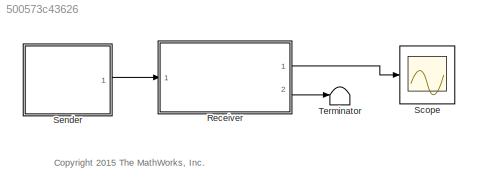
MODEL slx_500573c43626
KIND model
CONFIG AbsTol = auto
CONFIG EnableMultiTasking = on
CONFIG FixedStep = auto
CONFIG MaxStep = auto
CONFIG MinStep = auto
CONFIG RelTol = 1e-3
CONFIG SampleTimeConstraint = Unconstrained
CONFIG Solver = VariableStepAuto
CONFIG SolverName = VariableStepAuto
CONFIG StartTime = 0.0
CONFIG StopTime = 10.0
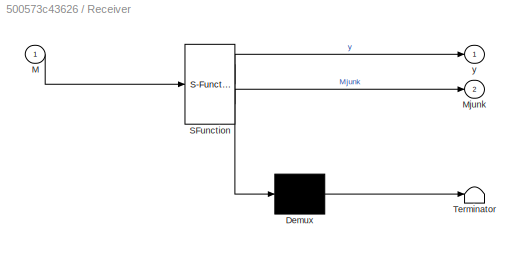
BLOCK [SubSystem] Receiver
  ErrorFcn = Stateflow.Translate.translate
  PermitHierarchicalResolution = ExplicitOnly
  Ports = [1, 2]
  RequestExecContextInheritance = off
  SFBlockType = Chart
  TreatAsAtomicUnit = on
  Variant = off
BLOCK [Demux] Receiver/ Demux 
  Outputs = 1
  Ports = [1, 1]
BLOCK [S-Function] Receiver/ SFunction 
  EnableBusSupport = off
  FunctionName = sf_sfun
  PortCounts = [1 3]
  Ports = [1, 3]
  SFcnIsStateOwnerBlock = off
  SFunctionDeploymentMode = off
  Tag = Stateflow S-Function sf_msg_process_multiple_messages 1
BLOCK [Terminator] Receiver/ Terminator 
BLOCK [Inport] Receiver/M
  IconDisplay = Port number
BLOCK [Outport] Receiver/Mjunk
  IconDisplay = Port number
  Port = 2
BLOCK [Outport] Receiver/y
  IconDisplay = Port number
BLOCK [Scope] Scope
  NumInputPorts = 1
  Ports = [1]
  ScopeSpecificationString = Simulink.scopes.TimeScopeBlockCfg('CurrentConfiguration', extmgr.ConfigurationSet(extmgr.Configuration('Core','General UI',true),extmgr.Configuration('Core','Source UI',true),extmgr.Configuration('Sources','WiredSimulink',true),extmgr.Configuration('Visuals','Time Domain',true,'SerializedDisplays',{struct('MinYLimReal','-0.75','MaxYLimReal','6.75','YLabelReal','','MinYLimMag','0.00000','MaxYLimMag...<+1357ch>
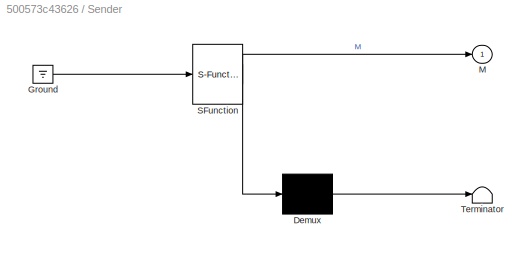
BLOCK [SubSystem] Sender
  ErrorFcn = Stateflow.Translate.translate
  PermitHierarchicalResolution = ExplicitOnly
  Ports = [0, 1]
  RequestExecContextInheritance = off
  SFBlockType = Chart
  TreatAsAtomicUnit = on
  Variant = off
BLOCK [Demux] Sender/ Demux 
  Outputs = 1
  Ports = [1, 1]
BLOCK [Ground] Sender/ Ground 
BLOCK [S-Function] Sender/ SFunction 
  EnableBusSupport = off
  FunctionName = sf_sfun
  PortCounts = [1 2]
  Ports = [1, 2]
  SFcnIsStateOwnerBlock = off
  SFunctionDeploymentMode = off
  Tag = Stateflow S-Function sf_msg_process_multiple_messages 3
BLOCK [Terminator] Sender/ Terminator 
BLOCK [Outport] Sender/M
  IconDisplay = Port number
BLOCK [Terminator] Terminator
ANNOTATION (root): <copyright redacted>
LINE Receiver:1 -> Scope:1
LINE Receiver:2 -> Terminator:1
LINE Sender:1 -> Receiver:1
CHART Receiver states=3 transitions=7
  STATE_LABEL 'Init'
  STATE_LABEL 'yy = sumOfAllMessageData'
  STATE_LABEL '{yy = 0;}'
  STATE_LABEL 'M'
  STATE_LABEL '{\nyy = yy + M.data;\nforward(M, Mjunk);\n}'
  STATE_LABEL 'ProcessAllMessages\nen:\ny = sumOfAllMessageData();'
CHART Sender states=1 transitions=0
  STATE_LABEL 'A\nen:\nM.data = 1;\nsend(M);\nM.data = 2;\nsend(M);\nM.data = 3;\nsend(M);'
